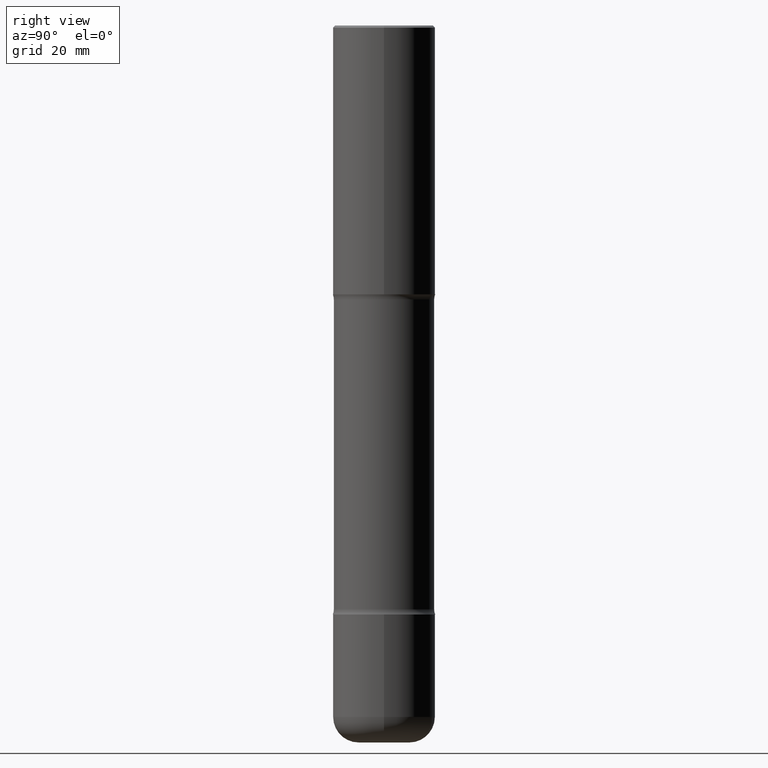
[diagram: clean part render]
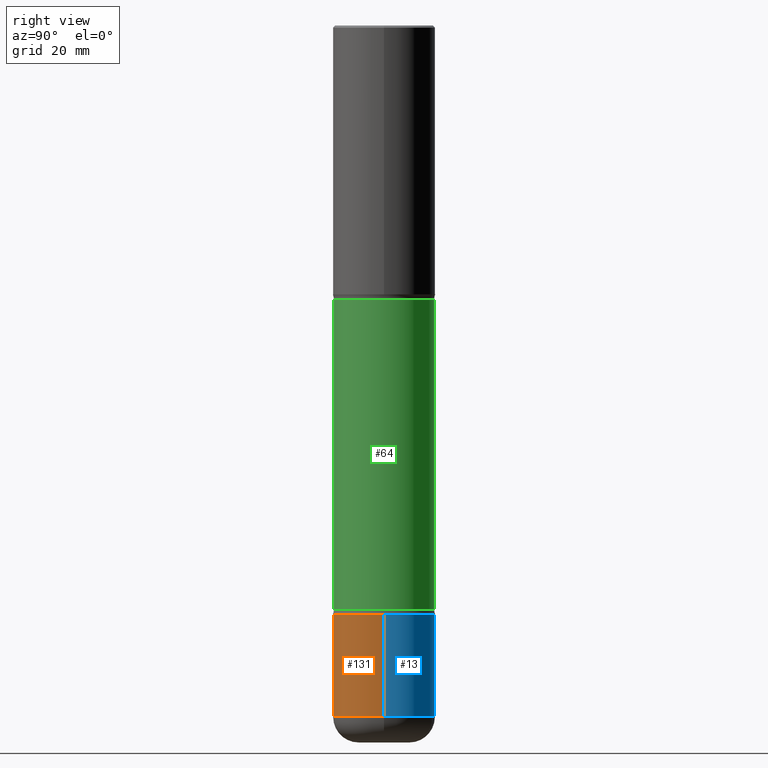
[diagram: same view with three faces highlighted in distinct colors, each labeled with its STEP entity id]
A machine part, right view with three faces highlighted in distinct colors.
Their STEP definitions:

[orange] entity #131 — the highlighted cylindrical surface (partial cylindrical patch) has radius 12.7 mm, axis along (-0, 0, 1).
#14 = DIRECTION ( 'NONE',  ( -2.445468806185136597E-29, 3.491481338843145583E-15, 1.000000000000000000 ) ) ;
#22 = ORIENTED_EDGE ( 'NONE', *, *, #298, .T. ) ;
#33 = DIRECTION ( 'NONE',  ( -2.445468806185136877E-29, 3.491481338843145188E-15, 1.000000000000000000 ) ) ;
#36 = CARTESIAN_POINT ( 'NONE',  ( 0.5000000000000006661, -2.705898037603436870E-14, -6.750000000000000888 ) ) ;
#58 = CYLINDRICAL_SURFACE ( 'NONE', #145, 0.5000000000000004441 ) ;
#62 = CARTESIAN_POINT ( 'NONE',  ( -0.5000000000000006661, -2.001478535839073126E-14, -6.750000000000000888 ) ) ;
#79 = VERTEX_POINT ( 'NONE', #62 ) ;
#91 = EDGE_CURVE ( 'NONE', #325, #263, #161, .T. ) ;
#123 = CARTESIAN_POINT ( 'NONE',  ( 0.5000000000000004441, -2.356749903719122903E-14, -5.750000000000001776 ) ) ;
#131 = ADVANCED_FACE ( 'NONE', ( #531 ), #58, .T. ) ;
#137 = ORIENTED_EDGE ( 'NONE', *, *, #292, .T. ) ;
#144 = CARTESIAN_POINT ( 'NONE',  ( 0.000000000000000000, 0.000000000000000000, 0.000000000000000000 ) ) ;
#145 = AXIS2_PLACEMENT_3D ( 'NONE', #144, #149, #192 ) ;
#148 = DIRECTION ( 'NONE',  ( 1.000000000000000000, -6.982962677686264344E-15, 0.000000000000000000 ) ) ;
#149 = DIRECTION ( 'NONE',  ( -2.445468806185136597E-29, 3.491481338843145583E-15, 1.000000000000000000 ) ) ;
#156 = DIRECTION ( 'NONE',  ( -2.445468806185136597E-29, 3.491481338843145583E-15, 1.000000000000000000 ) ) ;
#161 = CIRCLE ( 'NONE', #350, 0.5000000000000004441 ) ;
#192 = DIRECTION ( 'NONE',  ( 1.000000000000000000, -6.982962677686266711E-15, 4.876176775795935232E-29 ) ) ;
#198 = AXIS2_PLACEMENT_3D ( 'NONE', #349, #156, #294 ) ;
#215 = EDGE_LOOP ( 'NONE', ( #504, #137, #22, #435 ) ) ;
#219 = VECTOR ( 'NONE', #511, 39.37007874015748143 ) ;
#226 = EDGE_CURVE ( 'NONE', #79, #325, #549, .T. ) ;
#263 = VERTEX_POINT ( 'NONE', #123 ) ;
#292 = EDGE_CURVE ( 'NONE', #79, #508, #453, .T. ) ;
#294 = DIRECTION ( 'NONE',  ( 1.000000000000000000, -6.982962677686264344E-15, 0.000000000000000000 ) ) ;
#298 = EDGE_CURVE ( 'NONE', #508, #263, #421, .T. ) ;
#325 = VERTEX_POINT ( 'NONE', #401 ) ;
#326 = VECTOR ( 'NONE', #33, 39.37007874015748143 ) ;
#346 = CARTESIAN_POINT ( 'NONE',  ( 0.5000000000000004441, -3.491481338843136511E-15, 2.438088387897969858E-29 ) ) ;
#349 = CARTESIAN_POINT ( 'NONE',  ( 1.650691444174967427E-28, -2.356749903719123535E-14, -6.750000000000000888 ) ) ;
#350 = AXIS2_PLACEMENT_3D ( 'NONE', #450, #14, #148 ) ;
#401 = CARTESIAN_POINT ( 'NONE',  ( -0.5000000000000005551, -1.826904468896916143E-14, -5.750000000000001776 ) ) ;
#421 = LINE ( 'NONE', #346, #219 ) ;
#435 = ORIENTED_EDGE ( 'NONE', *, *, #91, .F. ) ;
#450 = CARTESIAN_POINT ( 'NONE',  ( 1.406144563556453992E-28, -2.007601769834809568E-14, -5.750000000000001776 ) ) ;
#453 = CIRCLE ( 'NONE', #198, 0.5000000000000004441 ) ;
#469 = CARTESIAN_POINT ( 'NONE',  ( -0.5000000000000004441, 3.552713678800504085E-15, -2.459467545127455133E-29 ) ) ;
#504 = ORIENTED_EDGE ( 'NONE', *, *, #226, .F. ) ;
#508 = VERTEX_POINT ( 'NONE', #36 ) ;
#511 = DIRECTION ( 'NONE',  ( -2.445468806185136877E-29, 3.491481338843145188E-15, 1.000000000000000000 ) ) ;
#531 = FACE_OUTER_BOUND ( 'NONE', #215, .T. ) ;
#549 = LINE ( 'NONE', #469, #326 ) ;

[blue] entity #13 — the highlighted cylindrical surface (partial cylindrical patch) has radius 12.7 mm, axis along (-0, 0, 1).
#13 = ADVANCED_FACE ( 'NONE', ( #445 ), #271, .T. ) ;
#33 = DIRECTION ( 'NONE',  ( -2.445468806185136877E-29, 3.491481338843145188E-15, 1.000000000000000000 ) ) ;
#36 = CARTESIAN_POINT ( 'NONE',  ( 0.5000000000000006661, -2.705898037603436870E-14, -6.750000000000000888 ) ) ;
#48 = CARTESIAN_POINT ( 'NONE',  ( 0.000000000000000000, 0.000000000000000000, 0.000000000000000000 ) ) ;
#62 = CARTESIAN_POINT ( 'NONE',  ( -0.5000000000000006661, -2.001478535839073126E-14, -6.750000000000000888 ) ) ;
#65 = ORIENTED_EDGE ( 'NONE', *, *, #410, .F. ) ;
#79 = VERTEX_POINT ( 'NONE', #62 ) ;
#89 = DIRECTION ( 'NONE',  ( 1.000000000000000000, -6.982962677686264344E-15, 0.000000000000000000 ) ) ;
#95 = CARTESIAN_POINT ( 'NONE',  ( 1.406144563556453992E-28, -2.007601769834809568E-14, -5.750000000000001776 ) ) ;
#96 = ORIENTED_EDGE ( 'NONE', *, *, #226, .T. ) ;
#97 = ORIENTED_EDGE ( 'NONE', *, *, #298, .F. ) ;
#123 = CARTESIAN_POINT ( 'NONE',  ( 0.5000000000000004441, -2.356749903719122903E-14, -5.750000000000001776 ) ) ;
#157 = EDGE_CURVE ( 'NONE', #508, #79, #197, .T. ) ;
#162 = CIRCLE ( 'NONE', #209, 0.5000000000000004441 ) ;
#171 = ORIENTED_EDGE ( 'NONE', *, *, #157, .T. ) ;
#197 = CIRCLE ( 'NONE', #404, 0.5000000000000004441 ) ;
#209 = AXIS2_PLACEMENT_3D ( 'NONE', #95, #269, #89 ) ;
#219 = VECTOR ( 'NONE', #511, 39.37007874015748143 ) ;
#225 = DIRECTION ( 'NONE',  ( 1.000000000000000000, -6.982962677686266711E-15, 4.876176775795935232E-29 ) ) ;
#226 = EDGE_CURVE ( 'NONE', #79, #325, #549, .T. ) ;
#263 = VERTEX_POINT ( 'NONE', #123 ) ;
#269 = DIRECTION ( 'NONE',  ( -2.445468806185136597E-29, 3.491481338843145583E-15, 1.000000000000000000 ) ) ;
#271 = CYLINDRICAL_SURFACE ( 'NONE', #439, 0.5000000000000004441 ) ;
#279 = DIRECTION ( 'NONE',  ( -2.445468806185136597E-29, 3.491481338843145583E-15, 1.000000000000000000 ) ) ;
#298 = EDGE_CURVE ( 'NONE', #508, #263, #421, .T. ) ;
#325 = VERTEX_POINT ( 'NONE', #401 ) ;
#326 = VECTOR ( 'NONE', #33, 39.37007874015748143 ) ;
#346 = CARTESIAN_POINT ( 'NONE',  ( 0.5000000000000004441, -3.491481338843136511E-15, 2.438088387897969858E-29 ) ) ;
#401 = CARTESIAN_POINT ( 'NONE',  ( -0.5000000000000005551, -1.826904468896916143E-14, -5.750000000000001776 ) ) ;
#403 = DIRECTION ( 'NONE',  ( -2.445468806185136597E-29, 3.491481338843145583E-15, 1.000000000000000000 ) ) ;
#404 = AXIS2_PLACEMENT_3D ( 'NONE', #535, #279, #416 ) ;
#410 = EDGE_CURVE ( 'NONE', #263, #325, #162, .T. ) ;
#415 = EDGE_LOOP ( 'NONE', ( #171, #96, #65, #97 ) ) ;
#416 = DIRECTION ( 'NONE',  ( 1.000000000000000000, -6.982962677686264344E-15, 0.000000000000000000 ) ) ;
#421 = LINE ( 'NONE', #346, #219 ) ;
#439 = AXIS2_PLACEMENT_3D ( 'NONE', #48, #403, #225 ) ;
#445 = FACE_OUTER_BOUND ( 'NONE', #415, .T. ) ;
#469 = CARTESIAN_POINT ( 'NONE',  ( -0.5000000000000004441, 3.552713678800504085E-15, -2.459467545127455133E-29 ) ) ;
#508 = VERTEX_POINT ( 'NONE', #36 ) ;
#511 = DIRECTION ( 'NONE',  ( -2.445468806185136877E-29, 3.491481338843145188E-15, 1.000000000000000000 ) ) ;
#535 = CARTESIAN_POINT ( 'NONE',  ( 1.650691444174967427E-28, -2.356749903719123535E-14, -6.750000000000000888 ) ) ;
#549 = LINE ( 'NONE', #469, #326 ) ;

[green] entity #64 — the highlighted cylindrical surface (partial cylindrical patch) has radius 12.446 mm, axis along (0, -0, -1).
#8 = EDGE_CURVE ( 'NONE', #248, #485, #484, .T. ) ;
#37 = EDGE_LOOP ( 'NONE', ( #250, #422, #431, #142 ) ) ;
#51 = AXIS2_PLACEMENT_3D ( 'NONE', #106, #234, #455 ) ;
#64 = ADVANCED_FACE ( 'NONE', ( #102 ), #199, .T. ) ;
#75 = EDGE_CURVE ( 'NONE', #201, #295, #238, .T. ) ;
#83 = CARTESIAN_POINT ( 'NONE',  ( 3.421651712066335533E-15, 0.4899999999999906097, -2.673989794855666347 ) ) ;
#102 = FACE_OUTER_BOUND ( 'NONE', #37, .T. ) ;
#106 = CARTESIAN_POINT ( 'NONE',  ( 1.721366360620030576E-28, -2.430377697221880819E-14, -7.000000000000000888 ) ) ;
#121 = DIRECTION ( 'NONE',  ( 6.982962677686266711E-15, 1.000000000000000000, -4.460159989655937807E-15 ) ) ;
#142 = ORIENTED_EDGE ( 'NONE', *, *, #75, .F. ) ;
#184 = AXIS2_PLACEMENT_3D ( 'NONE', #509, #514, #500 ) ;
#196 = DIRECTION ( 'NONE',  ( 2.521774376508615199E-29, -3.382207419096575054E-15, -1.000000000000000000 ) ) ;
#199 = CYLINDRICAL_SURFACE ( 'NONE', #51, 0.4900000000000002132 ) ;
#201 = VERTEX_POINT ( 'NONE', #83 ) ;
#234 = DIRECTION ( 'NONE',  ( 2.521774376508615199E-29, -3.382207419096575054E-15, -1.000000000000000000 ) ) ;
#238 = LINE ( 'NONE', #276, #384 ) ;
#248 = VERTEX_POINT ( 'NONE', #507 ) ;
#250 = ORIENTED_EDGE ( 'NONE', *, *, #540, .T. ) ;
#260 = CARTESIAN_POINT ( 'NONE',  ( 1.393790442618711164E-28, -1.991032405072724823E-14, -5.701010205144338094 ) ) ;
#270 = DIRECTION ( 'NONE',  ( 2.521774376508615199E-29, -3.382207419096575054E-15, -1.000000000000000000 ) ) ;
#275 = CARTESIAN_POINT ( 'NONE',  ( -3.361644018907879661E-15, -0.4900000000000245270, -6.999999999999998224 ) ) ;
#276 = CARTESIAN_POINT ( 'NONE',  ( 3.421651712066444395E-15, 0.4899999999999758993, -7.000000000000002665 ) ) ;
#290 = CIRCLE ( 'NONE', #547, 0.4900000000000002132 ) ;
#295 = VERTEX_POINT ( 'NONE', #499 ) ;
#333 = CIRCLE ( 'NONE', #184, 0.4900000000000003242 ) ;
#365 = VECTOR ( 'NONE', #270, 39.37007874015748143 ) ;
#384 = VECTOR ( 'NONE', #196, 39.37007874015748143 ) ;
#388 = CARTESIAN_POINT ( 'NONE',  ( -3.395946508896770262E-15, -0.4900000000000201972, -5.701010205144335430 ) ) ;
#396 = DIRECTION ( 'NONE',  ( 2.521774376508615199E-29, -3.382207419096575054E-15, -1.000000000000000000 ) ) ;
#422 = ORIENTED_EDGE ( 'NONE', *, *, #8, .T. ) ;
#431 = ORIENTED_EDGE ( 'NONE', *, *, #493, .F. ) ;
#455 = DIRECTION ( 'NONE',  ( 6.982962677686266711E-15, 1.000000000000000000, -4.460159989655937807E-15 ) ) ;
#484 = LINE ( 'NONE', #275, #365 ) ;
#485 = VERTEX_POINT ( 'NONE', #388 ) ;
#493 = EDGE_CURVE ( 'NONE', #295, #485, #290, .T. ) ;
#499 = CARTESIAN_POINT ( 'NONE',  ( 3.421651712066411263E-15, 0.4899999999999802847, -5.701010205144339871 ) ) ;
#500 = DIRECTION ( 'NONE',  ( 6.982962677686265922E-15, 1.000000000000000000, -3.345119992241952764E-15 ) ) ;
#507 = CARTESIAN_POINT ( 'NONE',  ( -3.395946508896849543E-15, -0.4900000000000100941, -2.673989794855663238 ) ) ;
#509 = CARTESIAN_POINT ( 'NONE',  ( 6.304441918352541244E-29, -9.672313161292138193E-15, -2.673989794855665014 ) ) ;
#514 = DIRECTION ( 'NONE',  ( 2.521774376508615199E-29, -3.382207419096575054E-15, -1.000000000000000000 ) ) ;
#540 = EDGE_CURVE ( 'NONE', #201, #248, #333, .T. ) ;
#547 = AXIS2_PLACEMENT_3D ( 'NONE', #260, #396, #121 ) ;